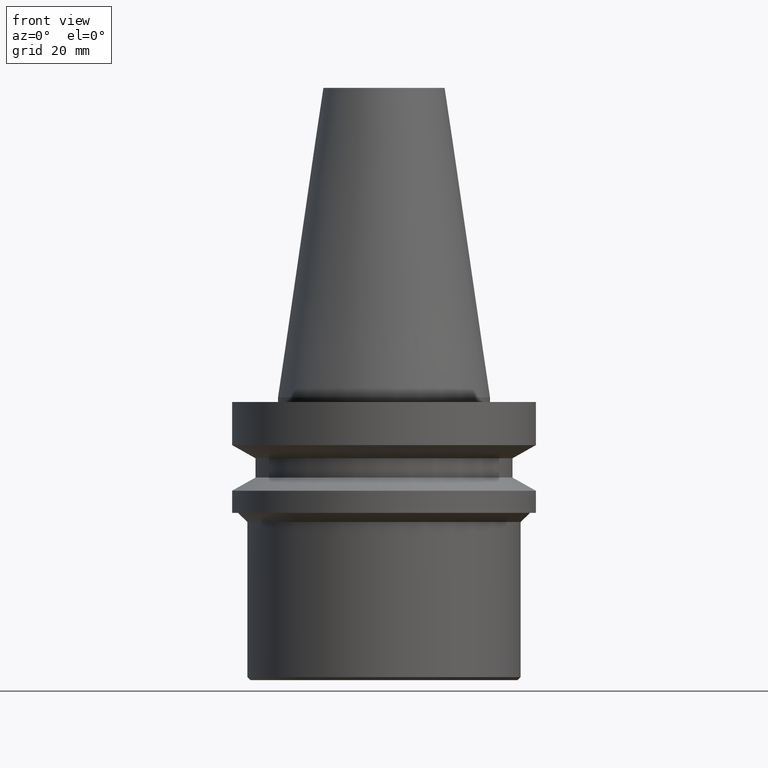
[diagram: clean part render]
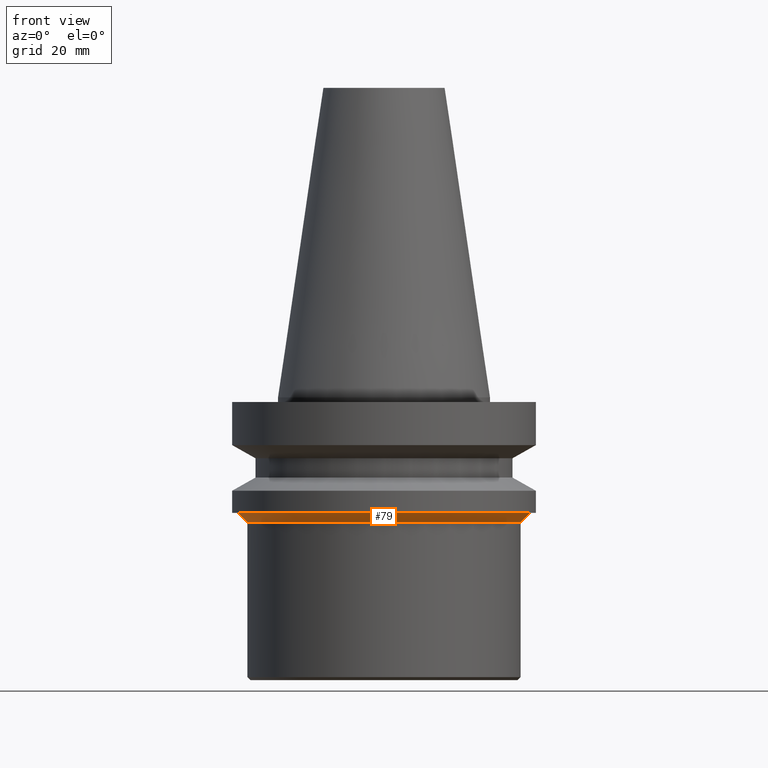
[diagram: same view with one face highlighted and labeled with its STEP entity id]
A machine part, front view. The second image highlights one B-rep face of the part: STEP entity #79.
In plain terms, the highlighted conical surface has half-angle 45 deg.
Its self-contained STEP definition (entity closure, byte-faithful):
#79=ADVANCED_FACE('',(#100,#101),#102,.T.);
#100=FACE_BOUND('',#140,.T.);
#101=FACE_BOUND('',#141,.T.);
#102=CONICAL_SURFACE('',#142,46.5,0.785398163397451);
#140=EDGE_LOOP('',(#188));
#141=EDGE_LOOP('',(#189));
#142=AXIS2_PLACEMENT_3D('',#190,#191,#192);
#188=ORIENTED_EDGE('',*,*,#242,.F.);
#189=ORIENTED_EDGE('',*,*,#240,.T.);
#190=CARTESIAN_POINT('',(2.41867742831606E-015,4.83735485663212E-015,-39.5000000000006));
#191=DIRECTION('',(-6.12323399573677E-017,-1.22464679914735E-016,1.0));
#192=DIRECTION('',(-1.23259516440783E-032,1.0,1.22464679914735E-016));
#240=EDGE_CURVE('',#255,#255,#256,.T.);
#242=EDGE_CURVE('',#259,#259,#260,.T.);
#255=VERTEX_POINT('',#281);
#256=CIRCLE('',#282,45.0);
#259=VERTEX_POINT('',#285);
#260=CIRCLE('',#286,48.0);
#281=CARTESIAN_POINT('',(2.51052593825211E-015,45.0,-41.0000000000006));
#282=AXIS2_PLACEMENT_3D('',#309,#310,#311);
#285=CARTESIAN_POINT('',(2.32682891838001E-015,48.0,-38.0000000000006));
#286=AXIS2_PLACEMENT_3D('',#315,#316,#317);
#309=CARTESIAN_POINT('',(2.51052593825211E-015,5.02105187650422E-015,-41.0000000000006));
#310=DIRECTION('',(-6.12323399573677E-017,-1.22464679914735E-016,1.0));
#311=DIRECTION('',(-1.23259516440783E-032,1.0,1.22464679914735E-016));
#315=CARTESIAN_POINT('',(2.32682891838001E-015,4.65365783676002E-015,-38.0000000000006));
#316=DIRECTION('',(-6.12323399573676E-017,-1.22464679914735E-016,1.0));
#317=DIRECTION('',(-1.23259516440783E-032,1.0,1.22464679914735E-016));